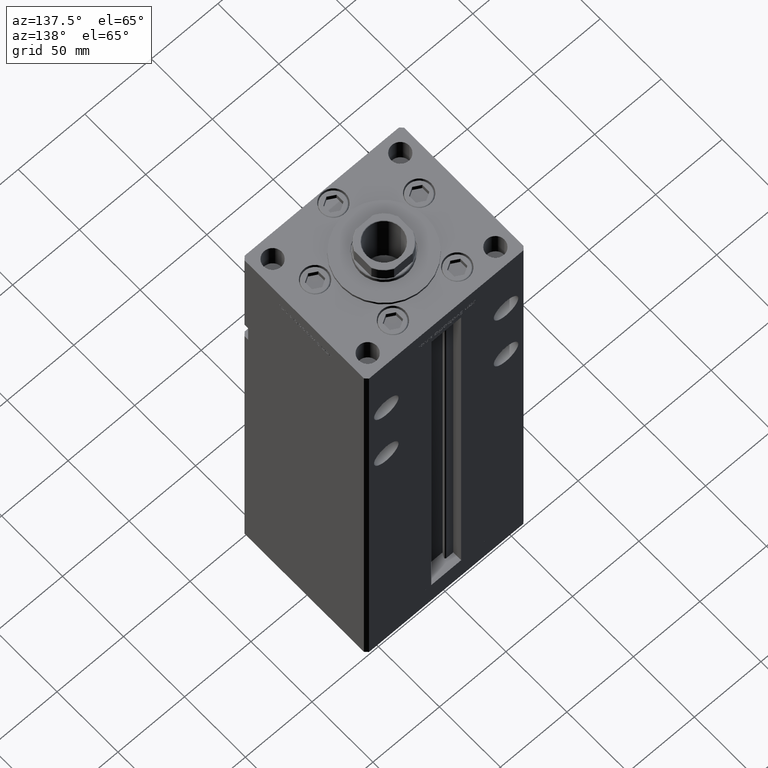
[diagram: clean part render]
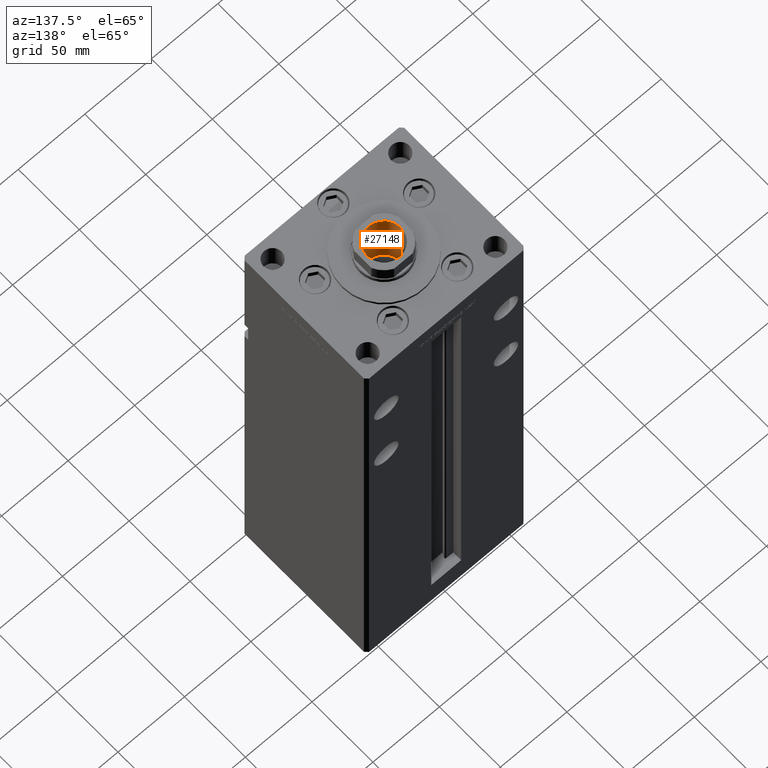
[diagram: same view with one face highlighted and labeled with its STEP entity id]
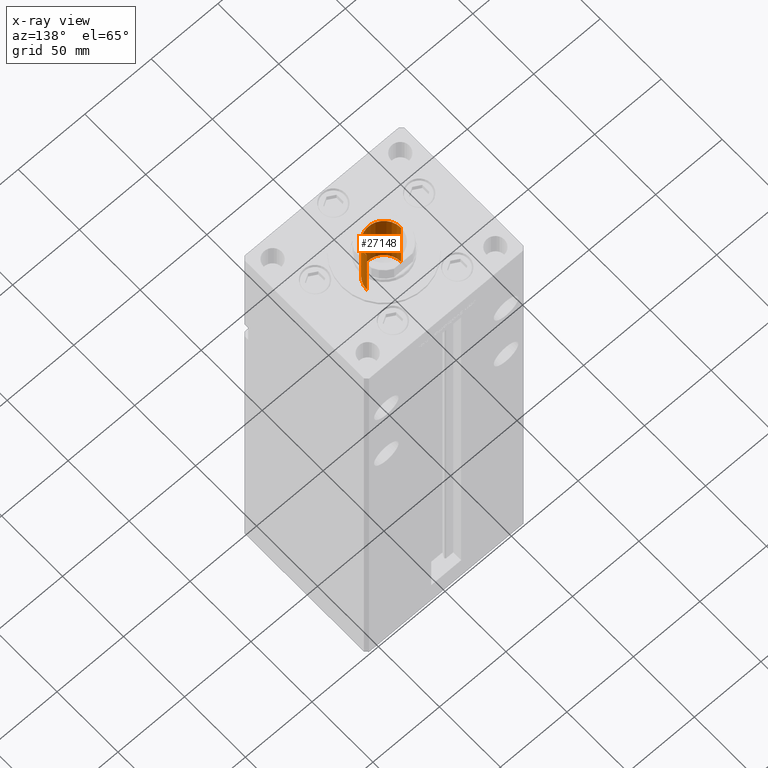
[diagram: x-ray of the same camera — body ghosted, the highlighted face saturated]
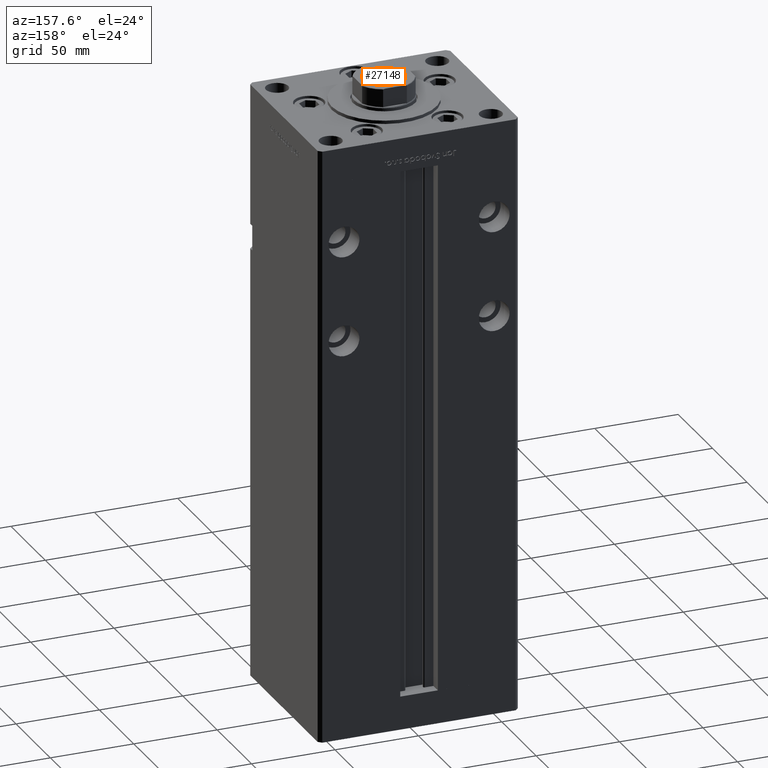
[diagram: same view with one face highlighted and labeled with its STEP entity id]
A machine part, auxiliary view. The second image highlights one B-rep face of the part: STEP entity #27148.
The next image is the same camera in x-ray: the body ghosted, the highlighted face saturated — about 0% of this face is hidden behind the body in this view.
A second angle (auxiliary view) of the same face is appended — the face is thin or edge-on in the first view.
In plain terms, the highlighted cylindrical surface (edge-blend (fillet) strip) has radius 12.75 mm, axis along (0, 0, 1).
Its self-contained STEP definition (entity closure, byte-faithful):
#409 = VERTEX_POINT ( 'NONE', #51143 ) ;
#819 = DIRECTION ( 'NONE',  ( 1.000000000000000000, 0.000000000000000000, 0.000000000000000000 ) ) ;
#1903 = VERTEX_POINT ( 'NONE', #49301 ) ;
#2338 = EDGE_CURVE ( 'NONE', #409, #1903, #24068, .T. ) ;
#3211 = AXIS2_PLACEMENT_3D ( 'NONE', #25710, #33754, #14445 ) ;
#3253 = CIRCLE ( 'NONE', #47747, 12.74999999999999467 ) ;
#4226 = DIRECTION ( 'NONE',  ( 1.000000000000000000, 0.000000000000000000, 0.000000000000000000 ) ) ;
#4850 = CARTESIAN_POINT ( 'NONE',  ( 0.000000000000000000, 0.000000000000000000, 338.9500000000000455 ) ) ;
#12995 = DIRECTION ( 'NONE',  ( -0.000000000000000000, -0.000000000000000000, 1.000000000000000000 ) ) ;
#13530 = CARTESIAN_POINT ( 'NONE',  ( -12.74999999999999467, 1.561424668912874519E-15, 339.2500000000000000 ) ) ;
#14029 = EDGE_LOOP ( 'NONE', ( #20428, #46960, #18442, #16978 ) ) ;
#14445 = DIRECTION ( 'NONE',  ( 1.000000000000000000, 0.000000000000000000, 0.000000000000000000 ) ) ;
#16978 = ORIENTED_EDGE ( 'NONE', *, *, #18675, .F. ) ;
#17409 = FACE_OUTER_BOUND ( 'NONE', #14029, .T. ) ;
#18442 = ORIENTED_EDGE ( 'NONE', *, *, #29069, .T. ) ;
#18675 = EDGE_CURVE ( 'NONE', #1903, #33410, #27069, .T. ) ;
#20428 = ORIENTED_EDGE ( 'NONE', *, *, #2338, .F. ) ;
#20987 = VECTOR ( 'NONE', #51739, 1000.000000000000000 ) ;
#24068 = CIRCLE ( 'NONE', #37760, 12.74999999999999112 ) ;
#24582 = VERTEX_POINT ( 'NONE', #40127 ) ;
#25710 = CARTESIAN_POINT ( 'NONE',  ( 0.000000000000000000, 0.000000000000000000, 339.2500000000000000 ) ) ;
#27069 = LINE ( 'NONE', #27343, #20987 ) ;
#27148 = ADVANCED_FACE ( 'NONE', ( #17409 ), #50641, .F. ) ;
#27343 = CARTESIAN_POINT ( 'NONE',  ( 12.74999999999999467, 0.000000000000000000, 339.2500000000000000 ) ) ;
#28605 = CARTESIAN_POINT ( 'NONE',  ( 0.000000000000000000, 0.000000000000000000, 294.2500000000000000 ) ) ;
#29069 = EDGE_CURVE ( 'NONE', #24582, #33410, #3253, .T. ) ;
#29447 = EDGE_CURVE ( 'NONE', #409, #24582, #50261, .T. ) ;
#33410 = VERTEX_POINT ( 'NONE', #46463 ) ;
#33754 = DIRECTION ( 'NONE',  ( -0.000000000000000000, -0.000000000000000000, 1.000000000000000000 ) ) ;
#37530 = DIRECTION ( 'NONE',  ( 0.000000000000000000, 0.000000000000000000, 1.000000000000000000 ) ) ;
#37760 = AXIS2_PLACEMENT_3D ( 'NONE', #28605, #40653, #4226 ) ;
#38313 = VECTOR ( 'NONE', #12995, 1000.000000000000000 ) ;
#40127 = CARTESIAN_POINT ( 'NONE',  ( -12.74999999999999467, 1.561424668912874519E-15, 338.9500000000000455 ) ) ;
#40653 = DIRECTION ( 'NONE',  ( -0.000000000000000000, -0.000000000000000000, 1.000000000000000000 ) ) ;
#46463 = CARTESIAN_POINT ( 'NONE',  ( 12.74999999999999467, 0.000000000000000000, 338.9500000000000455 ) ) ;
#46960 = ORIENTED_EDGE ( 'NONE', *, *, #29447, .T. ) ;
#47747 = AXIS2_PLACEMENT_3D ( 'NONE', #4850, #37530, #819 ) ;
#49301 = CARTESIAN_POINT ( 'NONE',  ( 12.74999999999999112, 0.000000000000000000, 294.2500000000000000 ) ) ;
#50261 = LINE ( 'NONE', #13530, #38313 ) ;
#50641 = CYLINDRICAL_SURFACE ( 'NONE', #3211, 12.74999999999999467 ) ;
#51143 = CARTESIAN_POINT ( 'NONE',  ( -12.74999999999999112, 1.561424668912874125E-15, 294.2500000000000000 ) ) ;
#51739 = DIRECTION ( 'NONE',  ( -0.000000000000000000, -0.000000000000000000, 1.000000000000000000 ) ) ;